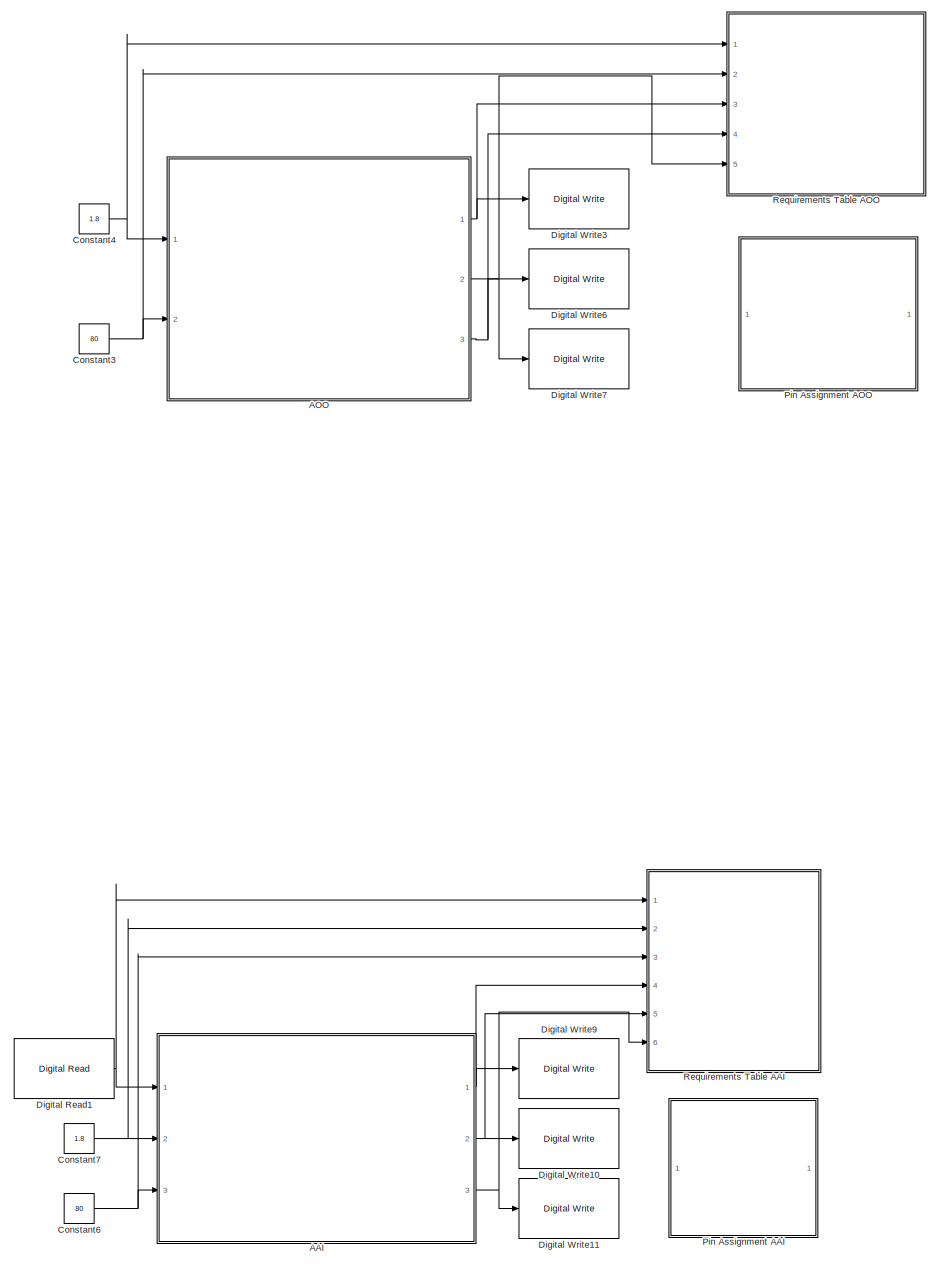
[diagram: root canvas - part 1/2, right side, full height]
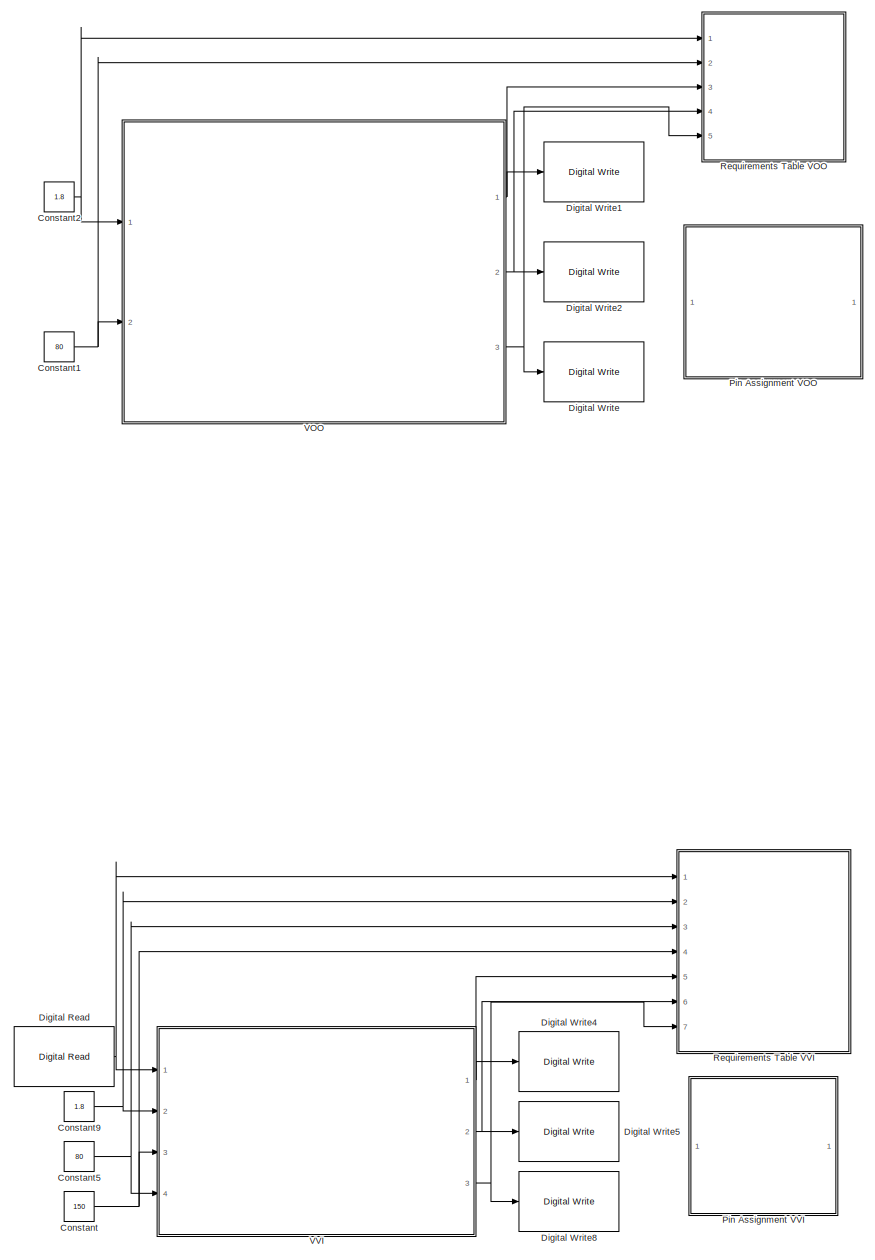
[diagram: root canvas - part 2/2, left side, full height]
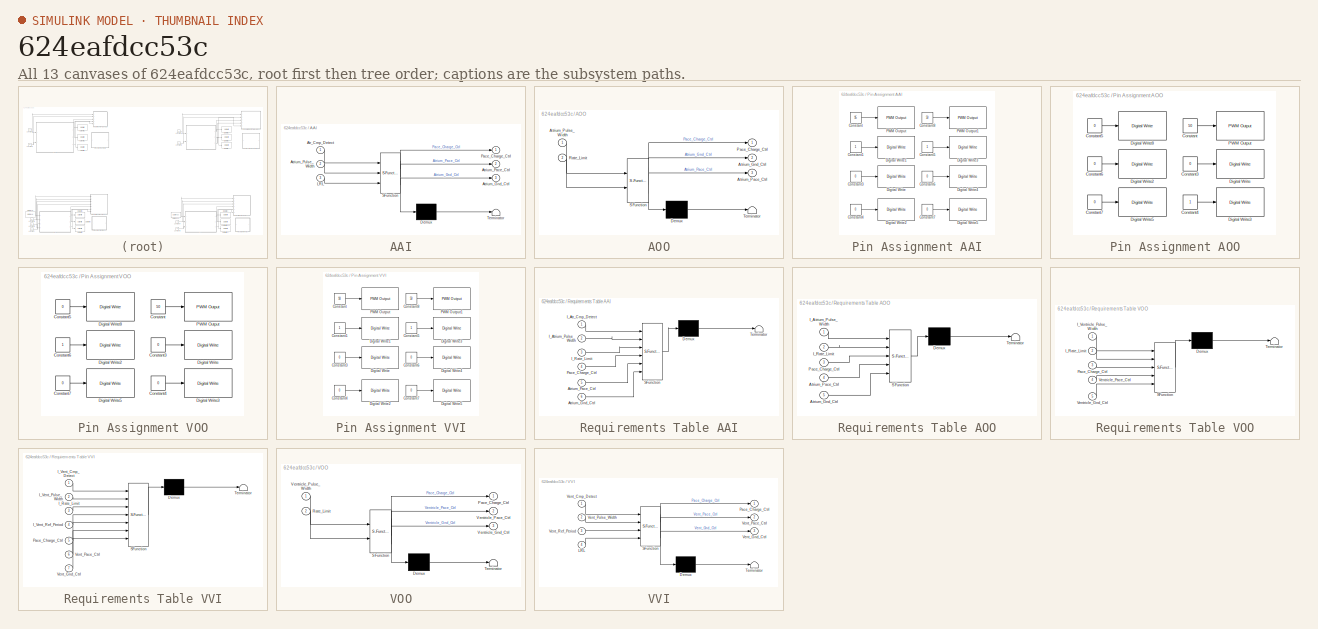
[diagram: thumbnail index - all 13 canvases of the model, root first then tree order]
MODEL slx_624eafdcc53c
KIND model
CONFIG AbsTol = auto
CONFIG EnableMultiTasking = on
CONFIG FixedStep = 1e-3
CONFIG MaxStep = auto
CONFIG MinStep = auto
CONFIG RelTol = 1e-3
CONFIG SampleTimeConstraint = Unconstrained
CONFIG SolverName = FixedStepAuto
CONFIG StartTime = 0.0
CONFIG StopTime = 10.0
BLOCK [SubSystem] AAI
  ErrorFcn = Stateflow.Translate.translate
  PermitHierarchicalResolution = ExplicitOnly
  Ports = [3, 3]
  RequestExecContextInheritance = off
  SFBlockType = Chart
  TreatAsAtomicUnit = on
BLOCK [Demux] AAI/ Demux 
  Outputs = 1
  Ports = [1, 1]
BLOCK [S-Function] AAI/ SFunction 
  EnableBusSupport = on
  FunctionName = sf_sfun
  PortCounts = [3 4]
  Ports = [3, 4]
  SFcnIsStateOwnerBlock = off
  SFunctionDeploymentMode = off
  Tag = Stateflow S-Function 7
BLOCK [Terminator] AAI/ Terminator 
BLOCK [Inport] AAI/Atr_Cmp_Detect
BLOCK [Outport] AAI/Atrium_Gnd_Ctrl
  Port = 3
BLOCK [Outport] AAI/Atrium_Pace_Ctrl
  Port = 2
BLOCK [Inport] AAI/Atrium_Pulse_Width
  Port = 2
BLOCK [Inport] AAI/LRL
  Port = 3
BLOCK [Outport] AAI/Pace_Charge_Ctrl
BLOCK [SubSystem] AOO
  ErrorFcn = Stateflow.Translate.translate
  PermitHierarchicalResolution = ExplicitOnly
  PortSchema = {"entries":[{"content":{"sides":[{"content":{"connectorIds":["In1","In2"]},"type":"ConnectorPlacement.EquallySpacedRectSide","uuid":"680d5ad3-d091-43dc-b942-9150701a6dd0"},{"content":{"connectorIds":["Out1","Out3","Out2"],"side":"RIGHT"},"type":"ConnectorPlacement.EquallySpacedRectSide","uuid":"5c4ab46d-119d-425a-a6f0-c11b7d896570"},{"content":{"connectorIds":[],"side":"TOP"},"type":"ConnectorPlac...<+260ch>
  Ports = [2, 3]
  RequestExecContextInheritance = off
  SFBlockType = Chart
  TreatAsAtomicUnit = on
BLOCK [Demux] AOO/ Demux 
  Outputs = 1
  Ports = [1, 1]
BLOCK [S-Function] AOO/ SFunction 
  EnableBusSupport = on
  FunctionName = sf_sfun
  PortCounts = [2 4]
  Ports = [2, 4]
  SFcnIsStateOwnerBlock = off
  SFunctionDeploymentMode = off
  Tag = Stateflow S-Function 2
BLOCK [Terminator] AOO/ Terminator 
BLOCK [Outport] AOO/Atrium_Gnd_Ctrl
  Port = 2
BLOCK [Outport] AOO/Atrium_Pace_Ctrl
  Port = 3
BLOCK [Inport] AOO/Atrium_Pulse_Width
BLOCK [Outport] AOO/Pace_Charge_Ctrl
BLOCK [Inport] AOO/Rate_Limit
  Port = 2
BLOCK [Constant] Constant
  OutDataTypeStr = int16
  Value = 150
BLOCK [Constant] Constant1
  OutDataTypeStr = double
  Value = 80
BLOCK [Constant] Constant2
  Value = 1.8
BLOCK [Constant] Constant3
  OutDataTypeStr = double
  Value = 80
BLOCK [Constant] Constant4
  Value = 1.8
BLOCK [Constant] Constant5
  Value = 80
BLOCK [Constant] Constant6
  Value = 80
BLOCK [Constant] Constant7
  Value = 1.8
BLOCK [Constant] Constant9
  Value = 1.8
BLOCK [Reference] Digital Read  REF=frdmk64flib/Digital Read
  Ports = [0, 1]
  SourceBlock = frdmk64flib/Digital Read
  SourceProductBaseCode = EC_FRDM_K64F
  SourceType = freedomk64f.DigitalRead
BLOCK [Reference] Digital Read1  REF=frdmk64flib/Digital Read
  Ports = [0, 1]
  SourceBlock = frdmk64flib/Digital Read
  SourceProductBaseCode = EC_FRDM_K64F
  SourceType = freedomk64f.DigitalRead
BLOCK [Reference] Digital Write  REF=frdmk64flib/Digital Write
  Ports = [1]
  SourceBlock = frdmk64flib/Digital Write
  SourceProductBaseCode = EC_FRDM_K64F
  SourceType = freedomk64f.DigitalWrite
BLOCK [Reference] Digital Write1  REF=frdmk64flib/Digital Write
  Ports = [1]
  SourceBlock = frdmk64flib/Digital Write
  SourceProductBaseCode = EC_FRDM_K64F
  SourceType = freedomk64f.DigitalWrite
BLOCK [Reference] Digital Write10  REF=frdmk64flib/Digital Write
  Ports = [1]
  SourceBlock = frdmk64flib/Digital Write
  SourceProductBaseCode = EC_FRDM_K64F
  SourceType = freedomk64f.DigitalWrite
BLOCK [Reference] Digital Write11  REF=frdmk64flib/Digital Write
  Ports = [1]
  SourceBlock = frdmk64flib/Digital Write
  SourceProductBaseCode = EC_FRDM_K64F
  SourceType = freedomk64f.DigitalWrite
BLOCK [Reference] Digital Write2  REF=frdmk64flib/Digital Write
  Ports = [1]
  SourceBlock = frdmk64flib/Digital Write
  SourceProductBaseCode = EC_FRDM_K64F
  SourceType = freedomk64f.DigitalWrite
BLOCK [Reference] Digital Write3  REF=frdmk64flib/Digital Write
  Ports = [1]
  SourceBlock = frdmk64flib/Digital Write
  SourceProductBaseCode = EC_FRDM_K64F
  SourceType = freedomk64f.DigitalWrite
BLOCK [Reference] Digital Write4  REF=frdmk64flib/Digital Write
  Ports = [1]
  SourceBlock = frdmk64flib/Digital Write
  SourceProductBaseCode = EC_FRDM_K64F
  SourceType = freedomk64f.DigitalWrite
BLOCK [Reference] Digital Write5  REF=frdmk64flib/Digital Write
  Ports = [1]
  SourceBlock = frdmk64flib/Digital Write
  SourceProductBaseCode = EC_FRDM_K64F
  SourceType = freedomk64f.DigitalWrite
BLOCK [Reference] Digital Write6  REF=frdmk64flib/Digital Write
  Ports = [1]
  SourceBlock = frdmk64flib/Digital Write
  SourceProductBaseCode = EC_FRDM_K64F
  SourceType = freedomk64f.DigitalWrite
BLOCK [Reference] Digital Write7  REF=frdmk64flib/Digital Write
  Ports = [1]
  SourceBlock = frdmk64flib/Digital Write
  SourceProductBaseCode = EC_FRDM_K64F
  SourceType = freedomk64f.DigitalWrite
BLOCK [Reference] Digital Write8  REF=frdmk64flib/Digital Write
  Ports = [1]
  SourceBlock = frdmk64flib/Digital Write
  SourceProductBaseCode = EC_FRDM_K64F
  SourceType = freedomk64f.DigitalWrite
BLOCK [Reference] Digital Write9  REF=frdmk64flib/Digital Write
  Ports = [1]
  SourceBlock = frdmk64flib/Digital Write
  SourceProductBaseCode = EC_FRDM_K64F
  SourceType = freedomk64f.DigitalWrite
BLOCK [SubSystem] Pin Assignment AAI
  Ports = []
  RequestExecContextInheritance = off
BLOCK [Constant] Pin Assignment AAI/Constant
  OutDataTypeStr = int8
  Value = 95
BLOCK [Constant] Pin Assignment AAI/Constant1
BLOCK [Constant] Pin Assignment AAI/Constant3
  Value = 0
BLOCK [Constant] Pin Assignment AAI/Constant4
  Value = 0
BLOCK [Constant] Pin Assignment AAI/Constant5
BLOCK [Constant] Pin Assignment AAI/Constant6
  Value = 0
BLOCK [Constant] Pin Assignment AAI/Constant7
  Value = 0
BLOCK [Constant] Pin Assignment AAI/Constant8
  OutDataTypeStr = int8
  Value = 50
BLOCK [Reference] Pin Assignment AAI/Digital Write  REF=frdmk64flib/Digital Write
  Ports = [1]
  SourceBlock = frdmk64flib/Digital Write
  SourceProductBaseCode = EC_FRDM_K64F
  SourceType = freedomk64f.DigitalWrite
BLOCK [Reference] Pin Assignment AAI/Digital Write1  REF=frdmk64flib/Digital Write
  Ports = [1]
  SourceBlock = frdmk64flib/Digital Write
  SourceProductBaseCode = EC_FRDM_K64F
  SourceType = freedomk64f.DigitalWrite
BLOCK [Reference] Pin Assignment AAI/Digital Write2  REF=frdmk64flib/Digital Write
  Ports = [1]
  SourceBlock = frdmk64flib/Digital Write
  SourceProductBaseCode = EC_FRDM_K64F
  SourceType = freedomk64f.DigitalWrite
BLOCK [Reference] Pin Assignment AAI/Digital Write3  REF=frdmk64flib/Digital Write
  Ports = [1]
  SourceBlock = frdmk64flib/Digital Write
  SourceProductBaseCode = EC_FRDM_K64F
  SourceType = freedomk64f.DigitalWrite
BLOCK [Reference] Pin Assignment AAI/Digital Write4  REF=frdmk64flib/Digital Write
  Ports = [1]
  SourceBlock = frdmk64flib/Digital Write
  SourceProductBaseCode = EC_FRDM_K64F
  SourceType = freedomk64f.DigitalWrite
BLOCK [Reference] Pin Assignment AAI/Digital Write5  REF=frdmk64flib/Digital Write
  Ports = [1]
  SourceBlock = frdmk64flib/Digital Write
  SourceProductBaseCode = EC_FRDM_K64F
  SourceType = freedomk64f.DigitalWrite
BLOCK [Reference] Pin Assignment AAI/PWM Output  REF=frdmk64flib/PWM Output
  Ports = [1]
  SourceBlock = frdmk64flib/PWM Output
  SourceProductBaseCode = EC_FRDM_K64F
  SourceType = freedomk64f.PWMOutput
BLOCK [Reference] Pin Assignment AAI/PWM Output1  REF=frdmk64flib/PWM Output
  Ports = [1]
  SourceBlock = frdmk64flib/PWM Output
  SourceProductBaseCode = EC_FRDM_K64F
  SourceType = freedomk64f.PWMOutput
BLOCK [SubSystem] Pin Assignment AOO
  Ports = []
  RequestExecContextInheritance = off
BLOCK [Constant] Pin Assignment AOO/Constant
  OutDataTypeStr = int8
  Value = 50
BLOCK [Constant] Pin Assignment AOO/Constant3
  OutDataTypeStr = int8
  Value = 0
BLOCK [Constant] Pin Assignment AOO/Constant4
  OutDataTypeStr = int8
BLOCK [Constant] Pin Assignment AOO/Constant5
  OutDataTypeStr = int8
  Value = 0
BLOCK [Constant] Pin Assignment AOO/Constant6
  OutDataTypeStr = int8
  Value = 0
BLOCK [Constant] Pin Assignment AOO/Constant7
  OutDataTypeStr = int8
  Value = 0
BLOCK [Reference] Pin Assignment AOO/Digital Write  REF=frdmk64flib/Digital Write
  Ports = [1]
  SourceBlock = frdmk64flib/Digital Write
  SourceProductBaseCode = EC_FRDM_K64F
  SourceType = freedomk64f.DigitalWrite
BLOCK [Reference] Pin Assignment AOO/Digital Write2  REF=frdmk64flib/Digital Write
  Ports = [1]
  SourceBlock = frdmk64flib/Digital Write
  SourceProductBaseCode = EC_FRDM_K64F
  SourceType = freedomk64f.DigitalWrite
BLOCK [Reference] Pin Assignment AOO/Digital Write3  REF=frdmk64flib/Digital Write
  Ports = [1]
  SourceBlock = frdmk64flib/Digital Write
  SourceProductBaseCode = EC_FRDM_K64F
  SourceType = freedomk64f.DigitalWrite
BLOCK [Reference] Pin Assignment AOO/Digital Write5  REF=frdmk64flib/Digital Write
  Ports = [1]
  SourceBlock = frdmk64flib/Digital Write
  SourceProductBaseCode = EC_FRDM_K64F
  SourceType = freedomk64f.DigitalWrite
BLOCK [Reference] Pin Assignment AOO/Digital Write8  REF=frdmk64flib/Digital Write
  Ports = [1]
  SourceBlock = frdmk64flib/Digital Write
  SourceProductBaseCode = EC_FRDM_K64F
  SourceType = freedomk64f.DigitalWrite
BLOCK [Reference] Pin Assignment AOO/PWM Output  REF=frdmk64flib/PWM Output
  Ports = [1]
  SourceBlock = frdmk64flib/PWM Output
  SourceProductBaseCode = EC_FRDM_K64F
  SourceType = freedomk64f.PWMOutput
BLOCK [SubSystem] Pin Assignment VOO
  Ports = []
  RequestExecContextInheritance = off
BLOCK [Constant] Pin Assignment VOO/Constant
  OutDataTypeStr = int8
  Value = 50
BLOCK [Constant] Pin Assignment VOO/Constant3
  OutDataTypeStr = int8
  Value = 0
BLOCK [Constant] Pin Assignment VOO/Constant4
  OutDataTypeStr = int8
  Value = 0
BLOCK [Constant] Pin Assignment VOO/Constant5
  OutDataTypeStr = int8
  Value = 0
BLOCK [Constant] Pin Assignment VOO/Constant6
  OutDataTypeStr = int8
BLOCK [Constant] Pin Assignment VOO/Constant7
  OutDataTypeStr = int8
  Value = 0
BLOCK [Reference] Pin Assignment VOO/Digital Write  REF=frdmk64flib/Digital Write
  Ports = [1]
  SourceBlock = frdmk64flib/Digital Write
  SourceProductBaseCode = EC_FRDM_K64F
  SourceType = freedomk64f.DigitalWrite
BLOCK [Reference] Pin Assignment VOO/Digital Write2  REF=frdmk64flib/Digital Write
  Ports = [1]
  SourceBlock = frdmk64flib/Digital Write
  SourceProductBaseCode = EC_FRDM_K64F
  SourceType = freedomk64f.DigitalWrite
BLOCK [Reference] Pin Assignment VOO/Digital Write3  REF=frdmk64flib/Digital Write
  Ports = [1]
  SourceBlock = frdmk64flib/Digital Write
  SourceProductBaseCode = EC_FRDM_K64F
  SourceType = freedomk64f.DigitalWrite
BLOCK [Reference] Pin Assignment VOO/Digital Write5  REF=frdmk64flib/Digital Write
  Ports = [1]
  SourceBlock = frdmk64flib/Digital Write
  SourceProductBaseCode = EC_FRDM_K64F
  SourceType = freedomk64f.DigitalWrite
BLOCK [Reference] Pin Assignment VOO/Digital Write8  REF=frdmk64flib/Digital Write
  Ports = [1]
  SourceBlock = frdmk64flib/Digital Write
  SourceProductBaseCode = EC_FRDM_K64F
  SourceType = freedomk64f.DigitalWrite
BLOCK [Reference] Pin Assignment VOO/PWM Output  REF=frdmk64flib/PWM Output
  Ports = [1]
  SourceBlock = frdmk64flib/PWM Output
  SourceProductBaseCode = EC_FRDM_K64F
  SourceType = freedomk64f.PWMOutput
BLOCK [SubSystem] Pin Assignment VVI
  Ports = []
  RequestExecContextInheritance = off
BLOCK [Constant] Pin Assignment VVI/Constant
  OutDataTypeStr = int8
  Value = 93
BLOCK [Constant] Pin Assignment VVI/Constant1
BLOCK [Constant] Pin Assignment VVI/Constant3
  Value = 0
BLOCK [Constant] Pin Assignment VVI/Constant4
  Value = 0
BLOCK [Constant] Pin Assignment VVI/Constant5
BLOCK [Constant] Pin Assignment VVI/Constant6
  Value = 0
BLOCK [Constant] Pin Assignment VVI/Constant7
  Value = 0
BLOCK [Constant] Pin Assignment VVI/Constant8
  OutDataTypeStr = int8
  Value = 50
BLOCK [Reference] Pin Assignment VVI/Digital Write  REF=frdmk64flib/Digital Write
  Ports = [1]
  SourceBlock = frdmk64flib/Digital Write
  SourceProductBaseCode = EC_FRDM_K64F
  SourceType = freedomk64f.DigitalWrite
BLOCK [Reference] Pin Assignment VVI/Digital Write1  REF=frdmk64flib/Digital Write
  Ports = [1]
  SourceBlock = frdmk64flib/Digital Write
  SourceProductBaseCode = EC_FRDM_K64F
  SourceType = freedomk64f.DigitalWrite
BLOCK [Reference] Pin Assignment VVI/Digital Write2  REF=frdmk64flib/Digital Write
  Ports = [1]
  SourceBlock = frdmk64flib/Digital Write
  SourceProductBaseCode = EC_FRDM_K64F
  SourceType = freedomk64f.DigitalWrite
BLOCK [Reference] Pin Assignment VVI/Digital Write3  REF=frdmk64flib/Digital Write
  Ports = [1]
  SourceBlock = frdmk64flib/Digital Write
  SourceProductBaseCode = EC_FRDM_K64F
  SourceType = freedomk64f.DigitalWrite
BLOCK [Reference] Pin Assignment VVI/Digital Write4  REF=frdmk64flib/Digital Write
  Ports = [1]
  SourceBlock = frdmk64flib/Digital Write
  SourceProductBaseCode = EC_FRDM_K64F
  SourceType = freedomk64f.DigitalWrite
BLOCK [Reference] Pin Assignment VVI/Digital Write5  REF=frdmk64flib/Digital Write
  Ports = [1]
  SourceBlock = frdmk64flib/Digital Write
  SourceProductBaseCode = EC_FRDM_K64F
  SourceType = freedomk64f.DigitalWrite
BLOCK [Reference] Pin Assignment VVI/PWM Output  REF=frdmk64flib/PWM Output
  Ports = [1]
  SourceBlock = frdmk64flib/PWM Output
  SourceProductBaseCode = EC_FRDM_K64F
  SourceType = freedomk64f.PWMOutput
BLOCK [Reference] Pin Assignment VVI/PWM Output1  REF=frdmk64flib/PWM Output
  Ports = [1]
  SourceBlock = frdmk64flib/PWM Output
  SourceProductBaseCode = EC_FRDM_K64F
  SourceType = freedomk64f.PWMOutput
BLOCK [SubSystem] Requirements Table AAI
  ErrorFcn = Stateflow.Translate.translate
  PermitHierarchicalResolution = ExplicitOnly
  Ports = [6]
  RequestExecContextInheritance = off
  SFBlockType = Requirements Table
  TreatAsAtomicUnit = on
BLOCK [Demux] Requirements Table AAI/ Demux 
  Outputs = 1
  Ports = [1, 1]
BLOCK [S-Function] Requirements Table AAI/ SFunction 
  EnableBusSupport = on
  FunctionName = sf_sfun
  PortCounts = [6 1]
  Ports = [6, 1]
  SFcnIsStateOwnerBlock = off
  SFunctionDeploymentMode = off
  Tag = Stateflow S-Function 8
BLOCK [Terminator] Requirements Table AAI/ Terminator 
BLOCK [Inport] Requirements Table AAI/Atrium_Gnd_Ctrl
  Port = 6
BLOCK [Inport] Requirements Table AAI/Atrium_Pace_Ctrl
  Port = 5
BLOCK [Inport] Requirements Table AAI/I_Atr_Cmp_Detect
BLOCK [Inport] Requirements Table AAI/I_Atrium_Pulse_Width
  Port = 2
BLOCK [Inport] Requirements Table AAI/I_Rate_Limit
  Port = 3
BLOCK [Inport] Requirements Table AAI/Pace_Charge_Ctrl
  Port = 4
BLOCK [SubSystem] Requirements Table AOO
  ErrorFcn = Stateflow.Translate.translate
  PermitHierarchicalResolution = ExplicitOnly
  Ports = [5]
  RequestExecContextInheritance = off
  SFBlockType = Requirements Table
  TreatAsAtomicUnit = on
BLOCK [Demux] Requirements Table AOO/ Demux 
  Outputs = 1
  Ports = [1, 1]
BLOCK [S-Function] Requirements Table AOO/ SFunction 
  EnableBusSupport = on
  FunctionName = sf_sfun
  PortCounts = [5 1]
  Ports = [5, 1]
  SFcnIsStateOwnerBlock = off
  SFunctionDeploymentMode = off
  Tag = Stateflow S-Function 4
BLOCK [Terminator] Requirements Table AOO/ Terminator 
BLOCK [Inport] Requirements Table AOO/Atrium_Gnd_Ctrl
  Port = 5
BLOCK [Inport] Requirements Table AOO/Atrium_Pace_Ctrl
  Port = 4
BLOCK [Inport] Requirements Table AOO/I_Atrium_Pulse_Width
BLOCK [Inport] Requirements Table AOO/I_Rate_Limit
  Port = 2
BLOCK [Inport] Requirements Table AOO/Pace_Charge_Ctrl
  Port = 3
BLOCK [SubSystem] Requirements Table VOO
  ErrorFcn = Stateflow.Translate.translate
  PermitHierarchicalResolution = ExplicitOnly
  Ports = [5]
  RequestExecContextInheritance = off
  SFBlockType = Requirements Table
  TreatAsAtomicUnit = on
BLOCK [Demux] Requirements Table VOO/ Demux 
  Outputs = 1
  Ports = [1, 1]
BLOCK [S-Function] Requirements Table VOO/ SFunction 
  EnableBusSupport = on
  FunctionName = sf_sfun
  PortCounts = [5 1]
  Ports = [5, 1]
  SFcnIsStateOwnerBlock = off
  SFunctionDeploymentMode = off
  Tag = Stateflow S-Function 1
BLOCK [Terminator] Requirements Table VOO/ Terminator 
BLOCK [Inport] Requirements Table VOO/I_Rate_Limit
  Port = 2
BLOCK [Inport] Requirements Table VOO/I_Ventricle_Pulse_Width
BLOCK [Inport] Requirements Table VOO/Pace_Charge_Ctrl
  Port = 3
BLOCK [Inport] Requirements Table VOO/Ventricle_Gnd_Ctrl
  Port = 5
BLOCK [Inport] Requirements Table VOO/Ventricle_Pace_Ctrl
  Port = 4
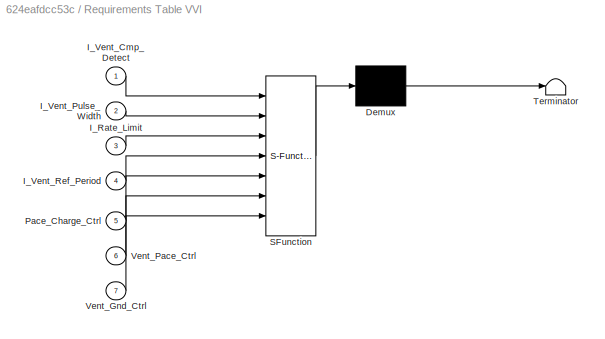
BLOCK [SubSystem] Requirements Table VVI
  ErrorFcn = Stateflow.Translate.translate
  PermitHierarchicalResolution = ExplicitOnly
  Ports = [7]
  RequestExecContextInheritance = off
  SFBlockType = Requirements Table
  TreatAsAtomicUnit = on
BLOCK [Demux] Requirements Table VVI/ Demux 
  Outputs = 1
  Ports = [1, 1]
BLOCK [S-Function] Requirements Table VVI/ SFunction 
  EnableBusSupport = on
  FunctionName = sf_sfun
  PortCounts = [7 1]
  Ports = [7, 1]
  SFcnIsStateOwnerBlock = off
  SFunctionDeploymentMode = off
  Tag = Stateflow S-Function 5
BLOCK [Terminator] Requirements Table VVI/ Terminator 
BLOCK [Inport] Requirements Table VVI/I_Rate_Limit
  Port = 3
BLOCK [Inport] Requirements Table VVI/I_Vent_Cmp_Detect
BLOCK [Inport] Requirements Table VVI/I_Vent_Pulse_Width
  Port = 2
BLOCK [Inport] Requirements Table VVI/I_Vent_Ref_Period
  Port = 4
BLOCK [Inport] Requirements Table VVI/Pace_Charge_Ctrl
  Port = 5
BLOCK [Inport] Requirements Table VVI/Vent_Gnd_Ctrl
  Port = 7
BLOCK [Inport] Requirements Table VVI/Vent_Pace_Ctrl
  Port = 6
BLOCK [SubSystem] VOO
  ErrorFcn = Stateflow.Translate.translate
  PermitHierarchicalResolution = ExplicitOnly
  Ports = [2, 3]
  RequestExecContextInheritance = off
  SFBlockType = Chart
  TreatAsAtomicUnit = on
BLOCK [Demux] VOO/ Demux 
  Outputs = 1
  Ports = [1, 1]
BLOCK [S-Function] VOO/ SFunction 
  EnableBusSupport = on
  FunctionName = sf_sfun
  PortCounts = [2 4]
  Ports = [2, 4]
  SFcnIsStateOwnerBlock = off
  SFunctionDeploymentMode = off
  Tag = Stateflow S-Function 3
BLOCK [Terminator] VOO/ Terminator 
BLOCK [Outport] VOO/Pace_Charge_Ctrl
BLOCK [Inport] VOO/Rate_Limit
  Port = 2
BLOCK [Outport] VOO/Ventricle_Gnd_Ctrl
  Port = 3
BLOCK [Outport] VOO/Ventricle_Pace_Ctrl
  Port = 2
BLOCK [Inport] VOO/Ventricle_Pulse_Width
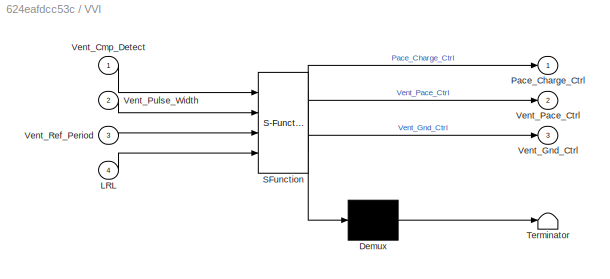
BLOCK [SubSystem] VVI
  ErrorFcn = Stateflow.Translate.translate
  PermitHierarchicalResolution = ExplicitOnly
  PortSchema = {"entries":[{"content":{"sides":[{"content":{"connectorIds":["In1","In2","In4","In3"]},"type":"ConnectorPlacement.EquallySpacedRectSide","uuid":"77befb9f-4f07-4a71-b7f1-2c262bc1904d"},{"content":{"connectorIds":["Out1","Out2","Out3"],"side":"RIGHT"},"type":"ConnectorPlacement.EquallySpacedRectSide","uuid":"0e23ffc0-fff8-4b52-b26b-28bd9c2ea1c8"},{"content":{"connectorIds":[],"side":"TOP"},"type":"C...<+272ch>
  Ports = [4, 3]
  RequestExecContextInheritance = off
  SFBlockType = Chart
  TreatAsAtomicUnit = on
BLOCK [Demux] VVI/ Demux 
  Outputs = 1
  Ports = [1, 1]
BLOCK [S-Function] VVI/ SFunction 
  EnableBusSupport = on
  FunctionName = sf_sfun
  PortCounts = [4 4]
  Ports = [4, 4]
  SFcnIsStateOwnerBlock = off
  SFunctionDeploymentMode = off
  Tag = Stateflow S-Function 6
BLOCK [Terminator] VVI/ Terminator 
BLOCK [Inport] VVI/LRL
  Port = 4
BLOCK [Outport] VVI/Pace_Charge_Ctrl
BLOCK [Inport] VVI/Vent_Cmp_Detect
BLOCK [Outport] VVI/Vent_Gnd_Ctrl
  Port = 3
BLOCK [Outport] VVI/Vent_Pace_Ctrl
  Port = 2
BLOCK [Inport] VVI/Vent_Pulse_Width
  Port = 2
BLOCK [Inport] VVI/Vent_Ref_Period
  Port = 3
NET AAI:1 -> Digital Write9:1, Requirements Table AAI:4
NET AAI:2 -> Digital Write10:1, Requirements Table AAI:5
NET AAI:3 -> Digital Write11:1, Requirements Table AAI:6
NET AOO:1 -> Digital Write3:1, Requirements Table AOO:3
NET AOO:2 -> Digital Write7:1, Requirements Table AOO:5
NET AOO:3 -> Digital Write6:1, Requirements Table AOO:4
NET Constant1:1 -> Requirements Table VOO:2, VOO:2
NET Constant2:1 -> Requirements Table VOO:1, VOO:1
NET Constant3:1 -> AOO:2, Requirements Table AOO:2
NET Constant4:1 -> AOO:1, Requirements Table AOO:1
NET Constant5:1 -> Requirements Table VVI:3, VVI:4
NET Constant6:1 -> AAI:3, Requirements Table AAI:3
NET Constant7:1 -> AAI:2, Requirements Table AAI:2
NET Constant9:1 -> Requirements Table VVI:2, VVI:2
NET Constant:1 -> Requirements Table VVI:4, VVI:3
NET Digital Read1:1 -> AAI:1, Requirements Table AAI:1
NET Digital Read:1 -> Requirements Table VVI:1, VVI:1
LINE Pin Assignment AAI/Constant1:1 -> Pin Assignment AAI/Digital Write1:1
LINE Pin Assignment AAI/Constant3:1 -> Pin Assignment AAI/Digital Write:1
LINE Pin Assignment AAI/Constant4:1 -> Pin Assignment AAI/Digital Write2:1
LINE Pin Assignment AAI/Constant5:1 -> Pin Assignment AAI/Digital Write3:1
LINE Pin Assignment AAI/Constant6:1 -> Pin Assignment AAI/Digital Write4:1
LINE Pin Assignment AAI/Constant7:1 -> Pin Assignment AAI/Digital Write5:1
LINE Pin Assignment AAI/Constant8:1 -> Pin Assignment AAI/PWM Output1:1
LINE Pin Assignment AAI/Constant:1 -> Pin Assignment AAI/PWM Output:1
LINE Pin Assignment AOO/Constant3:1 -> Pin Assignment AOO/Digital Write:1
LINE Pin Assignment AOO/Constant4:1 -> Pin Assignment AOO/Digital Write3:1
LINE Pin Assignment AOO/Constant5:1 -> Pin Assignment AOO/Digital Write8:1
LINE Pin Assignment AOO/Constant6:1 -> Pin Assignment AOO/Digital Write2:1
LINE Pin Assignment AOO/Constant7:1 -> Pin Assignment AOO/Digital Write5:1
LINE Pin Assignment AOO/Constant:1 -> Pin Assignment AOO/PWM Output:1
LINE Pin Assignment VOO/Constant3:1 -> Pin Assignment VOO/Digital Write:1
LINE Pin Assignment VOO/Constant4:1 -> Pin Assignment VOO/Digital Write3:1
LINE Pin Assignment VOO/Constant5:1 -> Pin Assignment VOO/Digital Write8:1
LINE Pin Assignment VOO/Constant6:1 -> Pin Assignment VOO/Digital Write2:1
LINE Pin Assignment VOO/Constant7:1 -> Pin Assignment VOO/Digital Write5:1
LINE Pin Assignment VOO/Constant:1 -> Pin Assignment VOO/PWM Output:1
LINE Pin Assignment VVI/Constant1:1 -> Pin Assignment VVI/Digital Write1:1
LINE Pin Assignment VVI/Constant3:1 -> Pin Assignment VVI/Digital Write:1
LINE Pin Assignment VVI/Constant4:1 -> Pin Assignment VVI/Digital Write2:1
LINE Pin Assignment VVI/Constant5:1 -> Pin Assignment VVI/Digital Write3:1
LINE Pin Assignment VVI/Constant6:1 -> Pin Assignment VVI/Digital Write4:1
LINE Pin Assignment VVI/Constant7:1 -> Pin Assignment VVI/Digital Write5:1
LINE Pin Assignment VVI/Constant8:1 -> Pin Assignment VVI/PWM Output1:1
LINE Pin Assignment VVI/Constant:1 -> Pin Assignment VVI/PWM Output:1
NET VOO:1 -> Digital Write1:1, Requirements Table VOO:3
NET VOO:2 -> Digital Write2:1, Requirements Table VOO:4
NET VOO:3 -> Digital Write:1, Requirements Table VOO:5
NET VVI:1 -> Digital Write4:1, Requirements Table VVI:5
NET VVI:2 -> Digital Write5:1, Requirements Table VVI:6
NET VVI:3 -> Digital Write8:1, Requirements Table VVI:7
note: NET lines group one-source signal fan-out (src -> all destinations, sorted); 1:1 wires keep LINE
CHART Requirements Table VOO states=0 transitions=18
CHART AOO states=2 transitions=3
  STATE_LABEL 'Charge_C22\nentry:\nAtrium_Pace_Ctrl = false;\nAtrium_Gnd_Ctrl = true;\nPace_Charge_Ctrl = true;\n'
  STATE_LABEL 'Discharge_C22\nentry:\nPace_Charge_Ctrl = false;\nAtrium_Pace_Ctrl = true;\nAtrium_Gnd_Ctrl = false;\n'
CHART VOO states=2 transitions=3
  STATE_LABEL 'Charge_C22\nentry:\nVentricle_Pace_Ctrl = false;\nVentricle_Gnd_Ctrl = true;\nPace_Charge_Ctrl = true;\n'
  STATE_LABEL 'Discharge_C22\nentry:\nPace_Charge_Ctrl = false;\nVentricle_Gnd_Ctrl = false;\nVentricle_Pace_Ctrl = true;'
CHART Requirements Table AOO states=0 transitions=18
CHART Requirements Table VVI states=0 transitions=28
CHART VVI states=3 transitions=5
  STATE_LABEL 'Inhibit\nentry:\nVent_Pace_Ctrl = false;\nVent_Gnd_Ctrl = true;\nPace_Charge_Ctrl = true;'
  STATE_LABEL 'Signal_Search\nentry:\nVent_Pace_Ctrl = false;\nVent_Gnd_Ctrl = true;\nPace_Charge_Ctrl = true;'
  STATE_LABEL 'Pace\nentry:\nPace_Charge_Ctrl = false;\nVent_Pace_Ctrl = true;\nVent_Gnd_Ctrl = false;'
CHART AAI states=3 transitions=5
  STATE_LABEL 'Inhibit\nentry:\nAtrium_Pace_Ctrl = false;\nAtrium_Gnd_Ctrl = true;\nPace_Charge_Ctrl = true;'
  STATE_LABEL 'Signal_Search\nentry:\nAtrium_Pace_Ctrl = false;\nAtrium_Gnd_Ctrl = true;\nPace_Charge_Ctrl = true;'
  STATE_LABEL 'Pace\nentry:\nPace_Charge_Ctrl = false;\nAtrium_Pace_Ctrl = true;\nAtrium_Gnd_Ctrl = false;'
CHART Requirements Table AAI states=0 transitions=28
CHART  states=0 transitions=0
CHART  states=0 transitions=0
CHART  states=0 transitions=0
CHART  states=0 transitions=0
CHART  states=0 transitions=0
CHART  states=0 transitions=0
CHART  states=0 transitions=0
CHART  states=0 transitions=0
